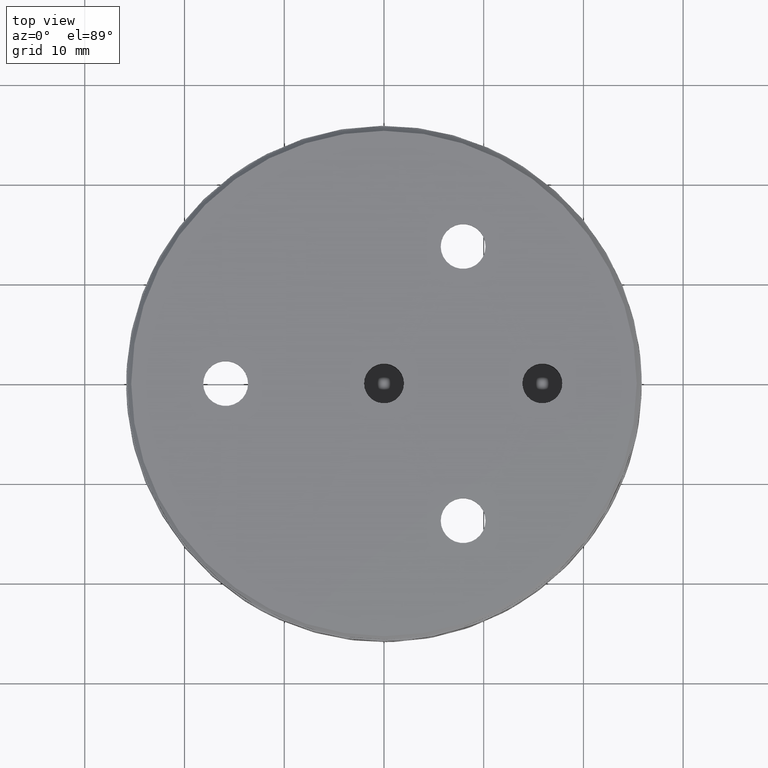
[diagram: clean part render]
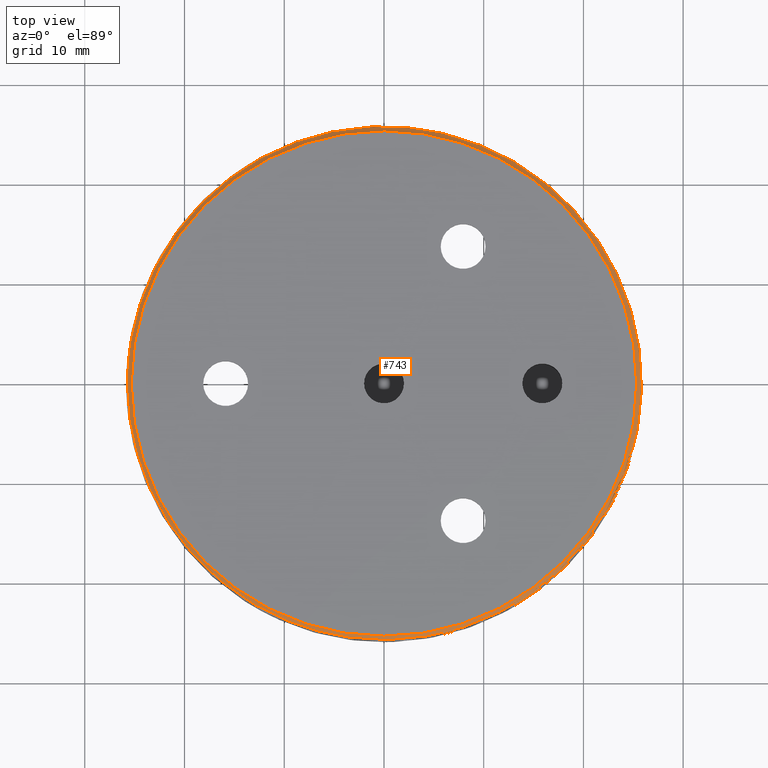
[diagram: same view with one face highlighted and labeled with its STEP entity id]
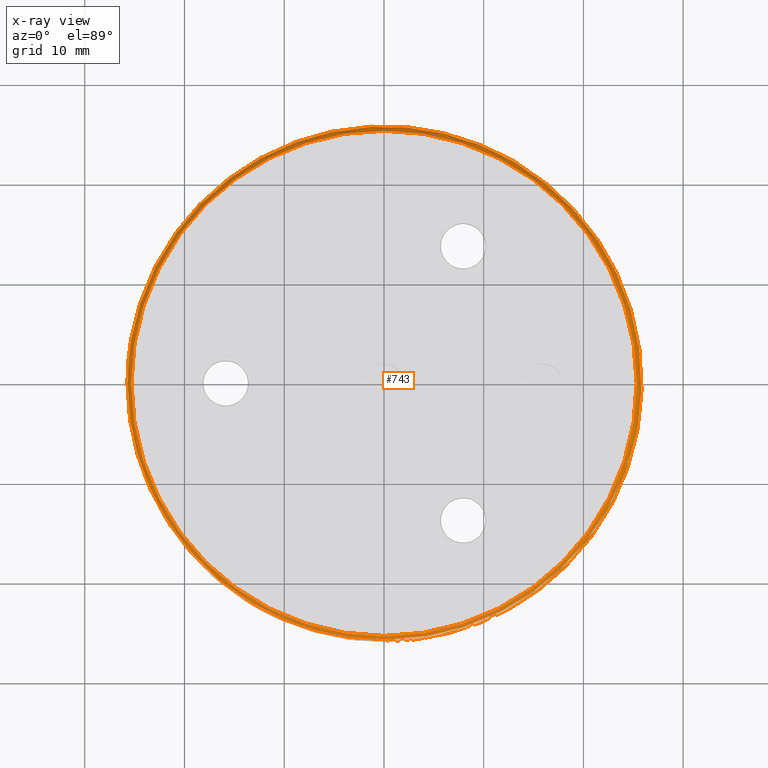
[diagram: x-ray of the same camera — body ghosted, the highlighted face saturated]
A machine part, top view. The second image highlights one B-rep face of the part: STEP entity #743.
The next image is the same camera in x-ray: the body ghosted, the highlighted face saturated — about 0% of this face is hidden behind the body in this view.
In plain terms, the highlighted conical surface has half-angle 45 deg.
Its self-contained STEP definition (entity closure, byte-faithful):
#11 = CARTESIAN_POINT ( 'NONE',  ( 25.06763760694458654, -5.603378234119207768, 2.671851915312509984 ) ) ;
#15 = CARTESIAN_POINT ( 'NONE',  ( -15.06891090939484457, 20.89152282177022357, 2.595670568228000352 ) ) ;
#27 = CARTESIAN_POINT ( 'NONE',  ( -2.743012097144958528, -25.53947917289819358, 2.671851915312503767 ) ) ;
#30 = CARTESIAN_POINT ( 'NONE',  ( -25.29607590722351063, 4.893230204886378054, 2.620394831642471889 ) ) ;
#41 = CIRCLE ( 'NONE', #346, 25.34450000000000713 ) ;
#45 = CARTESIAN_POINT ( 'NONE',  ( 15.96464738451332188, -20.10944352311117100, 2.671851915312510872 ) ) ;
#50 = CARTESIAN_POINT ( 'NONE',  ( -24.51065346522284472, -7.887202968037893669, 2.635895379690938789 ) ) ;
#78 = CARTESIAN_POINT ( 'NONE',  ( -1.906956132196477416, -25.61544687106314200, 2.671851915312507320 ) ) ;
#144 = VERTEX_POINT ( 'NONE', #3167 ) ;
#146 = B_SPLINE_CURVE_WITH_KNOTS ( 'NONE', 3,
 ( #3296, #27, #78, #2955, #915, #674, #1256, #2389, #3279, #3605, #3262, #933, #2149, #2700, #3311, #1494, #45, #2100, #2939, #300, #1206, #3572, #2972, #639, #622, #1477, #315, #1511, #3243, #2650, #11, #1188, #1224 ),
 .UNSPECIFIED., .F., .F.,
 ( 4, 2, 2, 2, 2, 2, 2, 2, 2, 2, 1, 2, 2, 2, 2, 2, 4 ),
 ( 2.920038055720058794E-15, 0.002517579865663192428, 0.005035159731323465317, 0.01007031946264400936, 0.01132910939547414689, 0.01258789932830428615, 0.01510547919396455947, 0.02014063892528510438, 0.02139942885811524018, 0.02265821879094537597, 0.02517579865660564062, 0.02769337852226591221, 0.02895216845509604800, 0.03021095838792618379, 0.03524611811924672350, 0.03776369798490699509, 0.04028127785056725974 ),
 .UNSPECIFIED. ) ;
#211 = CARTESIAN_POINT ( 'NONE',  ( 7.230559129688230335, -24.78618567637055747, 2.536555904489472990 ) ) ;
#237 = CARTESIAN_POINT ( 'NONE',  ( 10.12116736363706160, -23.73768408810974861, 2.550605924352377762 ) ) ;
#238 = CARTESIAN_POINT ( 'NONE',  ( 22.72404587963108824, 12.24492424579806027, 2.541345978747570289 ) ) ;
#256 = CARTESIAN_POINT ( 'NONE',  ( 18.96709693530042884, 17.49665246583202816, 2.549703881303192698 ) ) ;
#287 = CARTESIAN_POINT ( 'NONE',  ( 25.25182295748135886, -4.712063253121372419, 2.668348343695880143 ) ) ;
#299 = CARTESIAN_POINT ( 'NONE',  ( -11.11954704369859037, -23.16187580701096138, 2.661997342081771301 ) ) ;
#300 = CARTESIAN_POINT ( 'NONE',  ( 17.85073859610587732, -18.46962314872630984, 2.671851915312504211 ) ) ;
#304 = CARTESIAN_POINT ( 'NONE',  ( -19.80438159771444617, 16.50523807778404262, 2.603702768206946683 ) ) ;
#315 = CARTESIAN_POINT ( 'NONE',  ( 22.83757595741294111, -11.84588755022760331, 2.671851915312506431 ) ) ;
#319 = CARTESIAN_POINT ( 'NONE',  ( -24.03223477667026486, -9.240953754000084786, 2.637737015249403960 ) ) ;
#329 = CARTESIAN_POINT ( 'NONE',  ( -13.05456510623241151, -22.16760083472346210, 2.659471314972245093 ) ) ;
#336 = CARTESIAN_POINT ( 'NONE',  ( 16.89681810121521011, 19.49889464401413264, 2.553306854265943837 ) ) ;
#346 = AXIS2_PLACEMENT_3D ( 'NONE', #822, #2000, #2881 ) ;
#498 = CARTESIAN_POINT ( 'NONE',  ( 24.89969286313362318, 6.948356378426502999, 2.533970237938123926 ) ) ;
#520 = CARTESIAN_POINT ( 'NONE',  ( 16.03441418215737357, -20.18056435121482650, 2.580710065446153223 ) ) ;
#522 = CARTESIAN_POINT ( 'NONE',  ( 21.85940498889434025, -13.84901456277305343, 2.507401654237822353 ) ) ;
#543 = CARTESIAN_POINT ( 'NONE',  ( 25.68562398866959384, 2.687751970383501110, 2.528666484744909848 ) ) ;
#558 = CARTESIAN_POINT ( 'NONE',  ( 7.967561980521672638, -24.55551523405318193, 2.540136715990692462 ) ) ;
#559 = CARTESIAN_POINT ( 'NONE',  ( 0.000000000000000000, 0.000000000000000000, 2.500000000000006217 ) ) ;
#573 = CARTESIAN_POINT ( 'NONE',  ( 23.16185739777282393, -11.26254549623911849, 2.635577585907644682 ) ) ;
#591 = CARTESIAN_POINT ( 'NONE',  ( -24.12147903751101907, 9.067176955750623435, 2.614913608074051155 ) ) ;
#609 = CARTESIAN_POINT ( 'NONE',  ( -7.367198138489426285, 24.69366224808685928, 2.585473631790490057 ) ) ;
#622 = CARTESIAN_POINT ( 'NONE',  ( 21.53063199280479267, -13.98897681289069972, 2.671851915312513981 ) ) ;
#626 = CARTESIAN_POINT ( 'NONE',  ( -22.97061731059902812, 11.68764696389975910, 2.611204094143900090 ) ) ;
#639 = CARTESIAN_POINT ( 'NONE',  ( 21.06380181053152612, -14.68250113461025919, 2.671851915312513981 ) ) ;
#643 = CARTESIAN_POINT ( 'NONE',  ( -14.47671818085000872, 21.30697249542992466, 2.594816509585381681 ) ) ;
#674 = CARTESIAN_POINT ( 'NONE',  ( 3.099179106567478303, -25.53912283349180612, 2.671851915312499770 ) ) ;
#743 = ADVANCED_FACE ( 'NONE', ( #1161, #1465 ), #780, .T. ) ;
#780 = CONICAL_SURFACE ( 'NONE', #2268, 25.84450000000000003, 0.7853981633974447263 ) ;
#785 = ORIENTED_EDGE ( 'NONE', *, *, #3781, .T. ) ;
#791 = CIRCLE ( 'NONE', #1887, 25.84450000000000358 ) ;
#792 = CARTESIAN_POINT ( 'NONE',  ( 25.55889161641274754, -3.756352496522904261, 2.521159106190663302 ) ) ;
#807 = EDGE_CURVE ( 'NONE', #3692, #144, #860, .T. ) ;
#815 = CARTESIAN_POINT ( 'NONE',  ( 24.73690194776519746, -6.963964229409370432, 2.657570326535990013 ) ) ;
#816 = CARTESIAN_POINT ( 'NONE',  ( 25.36753817521633536, 4.830412687735067934, 2.531283400853393761 ) ) ;
#822 = CARTESIAN_POINT ( 'NONE',  ( 0.000000000000000000, 0.000000000000000000, 3.000000000000002665 ) ) ;
#837 = CARTESIAN_POINT ( 'NONE',  ( 22.36968673886676839, 12.87922203427327084, 2.542290528445884767 ) ) ;
#858 = CARTESIAN_POINT ( 'NONE',  ( 0.000000000000000000, 0.000000000000000000, 2.500000000000005773 ) ) ;
#860 = B_SPLINE_CURVE_WITH_KNOTS ( 'NONE', 3,
 ( #3182, #3474, #3215, #522, #2566, #1724, #1078, #2314, #2262, #3425, #2851, #792, #1104, #1971, #3138, #543, #1389, #816, #498, #1679, #3451, #2874, #238, #837, #2016, #2894, #256, #1193, #1210, #336, #903, #1498, #3230, #3283, #2087, #1482, #2959, #2376, #1514, #3575, #2655, #2670, #3249, #2976, #2393, #2103, #2992, #609, #1773, #3265, #2360, #2687, #643, #15, #2944, #3560, #304, #3541, #920, #626, #591, #1176, #30, #1822, #3819, #1789, #1805, #3523, #50, #319, #1228, #2410, #886, #2069, #937, #2120, #913, #329, #299, #3534, #930, #3224, #3276, #3569, #1766 ),
 .UNSPECIFIED., .F., .F.,
 ( 4, 2, 2, 2, 1, 2, 2, 2, 2, 2, 2, 2, 2, 2, 2, 2, 2, 2, 2, 2, 2, 2, 2, 2, 2, 2, 2, 2, 2, 2, 2, 2, 2, 2, 2, 2, 2, 2, 2, 2, 2, 2, 4 ),
 ( 3.017624285131519119E-16, 0.004354472376691388008, 0.008708944753382474174, 0.01088618094172801899, 0.01306341713007356208, 0.01524065331841911036, 0.01741788950676465692, 0.02177236188345575002, 0.02394959807180129657, 0.02612683426014684659, 0.03048130663683794664, 0.03265854282518348972, 0.03483577901352905015, 0.03919025139022015020, 0.04136748757856570369, 0.04354472376691125024, 0.04789919614360235028, 0.05007643233194789684, 0.05225366852029343645, 0.05660814089698452956, 0.05878537708533007611, 0.06096261327367563654, 0.06531708565036672964, 0.06749432183871227620, 0.06967155802705782275, 0.07402603040374890198, 0.07620326659209444853, 0.07838050278043999508, 0.08273497515713108819, 0.08708944753382219517, 0.09144391991051330215, 0.09579839228720439526, 0.1001528646638955022, 0.1045073370405865953, 0.1088618094172777023, 0.1132162817939687954, 0.1175707541706599024, 0.1219252265473510094, 0.1262796989240421164, 0.1306341713007332095, 0.1328114074890787422, 0.1349886436774243026, 0.1393431160541153957 ),
 .UNSPECIFIED. ) ;
#868 = CARTESIAN_POINT ( 'NONE',  ( 1.235272939682169335, -25.85343063433476729, 2.507462546822633698 ) ) ;
#886 = CARTESIAN_POINT ( 'NONE',  ( -20.53599384383138826, -15.51375947831237845, 2.647109255563058205 ) ) ;
#903 = CARTESIAN_POINT ( 'NONE',  ( 15.21519209083818680, 20.87204233112645824, 2.555948667674084795 ) ) ;
#913 = CARTESIAN_POINT ( 'NONE',  ( -14.27092487575787239, -21.40541457236222911, 2.657866076912856812 ) ) ;
#915 = CARTESIAN_POINT ( 'NONE',  ( 0.6080223885824987962, -25.67891898220855040, 2.671851915312500214 ) ) ;
#920 = CARTESIAN_POINT ( 'NONE',  ( -22.28684974076522352, 12.94987190286013679, 2.609333320892060826 ) ) ;
#930 = CARTESIAN_POINT ( 'NONE',  ( -9.133818673221711038, -24.01140399725689889, 2.664589997604721372 ) ) ;
#933 = CARTESIAN_POINT ( 'NONE',  ( 9.524705084859215631, -23.85507698768741847, 2.671851915312512649 ) ) ;
#937 = CARTESIAN_POINT ( 'NONE',  ( -17.63862873965563338, -18.73645621240089909, 2.652646146265492888 ) ) ;
#1078 = CARTESIAN_POINT ( 'NONE',  ( 23.83082650218958420, -9.993871674927953919, 2.513017583942240396 ) ) ;
#1104 = CARTESIAN_POINT ( 'NONE',  ( 25.81142581738217601, -1.603228823225191224, 2.523746987999885061 ) ) ;
#1128 = CARTESIAN_POINT ( 'NONE',  ( -0.3052499999997544955, -25.84269727964749563, 2.500000000000004441 ) ) ;
#1134 = DIRECTION ( 'NONE',  ( -0.000000000000000000, -0.000000000000000000, 1.000000000000000000 ) ) ;
#1136 = B_SPLINE_CURVE_WITH_KNOTS ( 'NONE', 3,
 ( #3802, #287, #2909, #815, #3787, #3199, #573, #2288, #2313, #2622, #1702, #3449, #2035, #520, #1723, #1160, #2873, #1145, #3769, #237, #3473, #558, #211, #1740, #1413, #1464, #868, #1128 ),
 .UNSPECIFIED., .F., .F.,
 ( 4, 2, 2, 2, 2, 2, 2, 2, 2, 2, 2, 2, 2, 4 ),
 ( 0.000000000000000000, 0.002310816653556329540, 0.004621633307112659080, 0.009243266614225321628, 0.01155408326778165073, 0.01386489992133798158, 0.01848653322845062591, 0.02079734988200694634, 0.02310816653556326677, 0.02541898318911958721, 0.02772979984267591111, 0.03004061649623223501, 0.03235143314978855544, 0.03697306645690119631 ),
 .UNSPECIFIED. ) ;
#1145 = CARTESIAN_POINT ( 'NONE',  ( 12.19734021197756491, -22.72924488051298297, 2.560706789334759481 ) ) ;
#1160 = CARTESIAN_POINT ( 'NONE',  ( 14.17104313373427971, -21.54236605508037883, 2.570473576810960559 ) ) ;
#1161 = FACE_BOUND ( 'NONE', #1917, .T. ) ;
#1175 = CARTESIAN_POINT ( 'NONE',  ( 18.21810356451844015, -18.33136336344028194, 2.500000000000004441 ) ) ;
#1176 = CARTESIAN_POINT ( 'NONE',  ( -24.58884768749964067, 7.707857572761276366, 2.616753741695094337 ) ) ;
#1188 = CARTESIAN_POINT ( 'NONE',  ( 25.23775713223716721, -4.779615750475796787, 2.671851915312514425 ) ) ;
#1193 = CARTESIAN_POINT ( 'NONE',  ( 18.47321782043643879, 18.01616807323058467, 2.550610476576815167 ) ) ;
#1206 = CARTESIAN_POINT ( 'NONE',  ( 19.02300067426999064, -17.29913994901311725, 2.671851915312518422 ) ) ;
#1210 = CARTESIAN_POINT ( 'NONE',  ( 17.43926414314532636, 19.01634344907399310, 2.552410125584808398 ) ) ;
#1224 = CARTESIAN_POINT ( 'NONE',  ( 25.36688974355488213, -3.950413195925047916, 2.671851915312510428 ) ) ;
#1228 = CARTESIAN_POINT ( 'NONE',  ( -22.83611917689800919, -11.88534548713755612, 2.641505915269605875 ) ) ;
#1256 = CARTESIAN_POINT ( 'NONE',  ( 4.734452815106644508, -25.28695430399554311, 2.671851915312507764 ) ) ;
#1381 = VERTEX_POINT ( 'NONE', #3231 ) ;
#1389 = CARTESIAN_POINT ( 'NONE',  ( 25.49425839336997868, 4.114462598351630973, 2.530395652823842489 ) ) ;
#1413 = CARTESIAN_POINT ( 'NONE',  ( 5.005454968139399163, -25.34033255300571241, 2.525751073430869909 ) ) ;
#1464 = CARTESIAN_POINT ( 'NONE',  ( 2.755241766057996866, -25.72736561052414928, 2.514831987423809423 ) ) ;
#1465 = FACE_OUTER_BOUND ( 'NONE', #2869, .T. ) ;
#1477 = CARTESIAN_POINT ( 'NONE',  ( 21.75681646885927378, -13.63453294238647118, 2.671851915312505543 ) ) ;
#1482 = CARTESIAN_POINT ( 'NONE',  ( 9.554855416706168114, 23.95603740174028928, 2.563445464520851758 ) ) ;
#1494 = CARTESIAN_POINT ( 'NONE',  ( 15.63322509733715293, -20.36815474553518257, 2.671851915312504655 ) ) ;
#1498 = CARTESIAN_POINT ( 'NONE',  ( 14.03185559057608067, 21.68220894794449194, 2.557623780114026246 ) ) ;
#1511 = CARTESIAN_POINT ( 'NONE',  ( 23.55161180211410255, -10.35137204564697200, 2.671851915312510428 ) ) ;
#1514 = CARTESIAN_POINT ( 'NONE',  ( 4.019739407155918265, 25.46851425438148553, 2.570646618948429385 ) ) ;
#1548 = CARTESIAN_POINT ( 'NONE',  ( -25.34450000000000713, 0.000000000000000000, 3.000000000000002665 ) ) ;
#1614 = ORIENTED_EDGE ( 'NONE', *, *, #807, .T. ) ;
#1679 = CARTESIAN_POINT ( 'NONE',  ( 24.47372886666895297, 8.317143024854974698, 2.535787354043154807 ) ) ;
#1702 = CARTESIAN_POINT ( 'NONE',  ( 20.30926824448211221, -15.82457044830392157, 2.609410283974482603 ) ) ;
#1723 = CARTESIAN_POINT ( 'NONE',  ( 15.42649539436147776, -20.65347445526666093, 2.577249340672406408 ) ) ;
#1724 = CARTESIAN_POINT ( 'NONE',  ( 23.54103867848563070, -10.66097570871893296, 2.512078979638393328 ) ) ;
#1740 = CARTESIAN_POINT ( 'NONE',  ( 5.750539295700062503, -25.17813216905457452, 2.529368111138111885 ) ) ;
#1766 = CARTESIAN_POINT ( 'NONE',  ( -3.574037353683141127, -25.42264967847935608, 2.671851915312508208 ) ) ;
#1773 = CARTESIAN_POINT ( 'NONE',  ( -9.431282338002713317, 24.01125370746833099, 2.588163025216946522 ) ) ;
#1789 = CARTESIAN_POINT ( 'NONE',  ( -25.74549410163858809, -0.8132226073678476830, 2.627100835975657578 ) ) ;
#1805 = CARTESIAN_POINT ( 'NONE',  ( -25.48703116094769072, -3.704921042224775363, 2.630534542619506588 ) ) ;
#1822 = CARTESIAN_POINT ( 'NONE',  ( -25.52653891275807396, 3.476072672566138611, 2.622146557340267137 ) ) ;
#1874 = EDGE_CURVE ( 'NONE', #144, #1381, #146, .T. ) ;
#1887 = AXIS2_PLACEMENT_3D ( 'NONE', #858, #1134, #3728 ) ;
#1917 = EDGE_LOOP ( 'NONE', ( #3709 ) ) ;
#1927 = VERTEX_POINT ( 'NONE', #2372 ) ;
#1971 = CARTESIAN_POINT ( 'NONE',  ( 25.85824411005153678, -0.1707540606534859451, 2.525339460285855875 ) ) ;
#2000 = DIRECTION ( 'NONE',  ( -0.000000000000000000, -0.000000000000000000, 1.000000000000000000 ) ) ;
#2016 = CARTESIAN_POINT ( 'NONE',  ( 21.23225163117178838, 14.72728367664318405, 2.545111087373055359 ) ) ;
#2035 = CARTESIAN_POINT ( 'NONE',  ( 17.78064382935947307, -18.69278507032727887, 2.591198599105923872 ) ) ;
#2052 = DIRECTION ( 'NONE',  ( -1.000000000000000000, 0.000000000000000000, 0.000000000000000000 ) ) ;
#2069 = CARTESIAN_POINT ( 'NONE',  ( -19.63843760527839777, -16.63421427503056194, 2.648962345553560027 ) ) ;
#2087 = CARTESIAN_POINT ( 'NONE',  ( 10.22507598606761547, 23.67852554263066978, 2.562573786447281510 ) ) ;
#2100 = CARTESIAN_POINT ( 'NONE',  ( 16.61103692529409059, -19.57889519833950942, 2.671851915312510428 ) ) ;
#2103 = CARTESIAN_POINT ( 'NONE',  ( -5.272911531929613815, 25.22659119887453016, 2.582745364306819003 ) ) ;
#2120 = CARTESIAN_POINT ( 'NONE',  ( -16.56236611065778064, -19.69049796038207489, 2.654428501739337865 ) ) ;
#2149 = CARTESIAN_POINT ( 'NONE',  ( 10.29167940405978676, -23.53406985010139607, 2.671851915312511760 ) ) ;
#2262 = CARTESIAN_POINT ( 'NONE',  ( 24.81038747379168896, -7.284766357912737966, 2.516701731303074396 ) ) ;
#2268 = AXIS2_PLACEMENT_3D ( 'NONE', #559, #2345, #2052 ) ;
#2288 = CARTESIAN_POINT ( 'NONE',  ( 22.04006909828011374, -13.27983119705147530, 2.624340725411660191 ) ) ;
#2313 = CARTESIAN_POINT ( 'NONE',  ( 21.63600116668435547, -13.93532687129316727, 2.620594775657195896 ) ) ;
#2314 = CARTESIAN_POINT ( 'NONE',  ( 24.34965780860095919, -8.647790849719465101, 2.514868896262466347 ) ) ;
#2345 = DIRECTION ( 'NONE',  ( 0.000000000000000000, 0.000000000000000000, -1.000000000000000000 ) ) ;
#2360 = CARTESIAN_POINT ( 'NONE',  ( -12.64815836038828145, 22.44346193773934317, 2.592355811050787384 ) ) ;
#2372 = CARTESIAN_POINT ( 'NONE',  ( -0.3052499999997544955, -25.84269727964749563, 2.500000000000004441 ) ) ;
#2376 = CARTESIAN_POINT ( 'NONE',  ( 6.130526657445280136, 25.07783433354985547, 2.567899923921498573 ) ) ;
#2389 = CARTESIAN_POINT ( 'NONE',  ( 6.746787209704791621, -24.77374087893442578, 2.671851915312507764 ) ) ;
#2393 = CARTESIAN_POINT ( 'NONE',  ( -4.569783082793029472, 25.36423202999657178, 2.581829514500619371 ) ) ;
#2410 = CARTESIAN_POINT ( 'NONE',  ( -22.13463763940408313, -13.13975593155578281, 2.643381655927014240 ) ) ;
#2566 = CARTESIAN_POINT ( 'NONE',  ( 22.59365458698423623, -12.61259950354423331, 2.509268697953661587 ) ) ;
#2622 = CARTESIAN_POINT ( 'NONE',  ( 20.77167710500697950, -15.20628144652094527, 2.613138130058144437 ) ) ;
#2650 = CARTESIAN_POINT ( 'NONE',  ( 24.64979793892661775, -7.223002450352062453, 2.671851915312510428 ) ) ;
#2655 = CARTESIAN_POINT ( 'NONE',  ( 1.879758186846716361, 25.71247186724304612, 2.573431800695255234 ) ) ;
#2669 = VERTEX_POINT ( 'NONE', #1548 ) ;
#2670 = CARTESIAN_POINT ( 'NONE',  ( 1.156224926244236118, 25.75436363400630313, 2.574373613630913216 ) ) ;
#2687 = CARTESIAN_POINT ( 'NONE',  ( -13.26694054281294122, 22.08248925075617208, 2.593154471580205733 ) ) ;
#2700 = CARTESIAN_POINT ( 'NONE',  ( 12.53537803108144288, -22.46539902247134535, 2.671851915312512205 ) ) ;
#2787 = EDGE_CURVE ( 'NONE', #1927, #3692, #791, .T. ) ;
#2844 = ORIENTED_EDGE ( 'NONE', *, *, #1874, .T. ) ;
#2851 = CARTESIAN_POINT ( 'NONE',  ( 25.44381284635339213, -4.474720584320224681, 2.520275740296380906 ) ) ;
#2869 = EDGE_LOOP ( 'NONE', ( #2844, #785, #3106, #1614 ) ) ;
#2873 = CARTESIAN_POINT ( 'NONE',  ( 13.52517461493125950, -21.95745954543784961, 2.567171020852120122 ) ) ;
#2874 = CARTESIAN_POINT ( 'NONE',  ( 23.37274947643067691, 10.96044728851504679, 2.539478214078742191 ) ) ;
#2881 = DIRECTION ( 'NONE',  ( -1.000000000000000000, 0.000000000000000000, 0.000000000000000000 ) ) ;
#2894 = CARTESIAN_POINT ( 'NONE',  ( 20.38049221271865008, 15.88070598819003187, 2.546964108294987206 ) ) ;
#2909 = CARTESIAN_POINT ( 'NONE',  ( 25.10257902810525366, -5.468179756202075303, 2.664786138742692323 ) ) ;
#2939 = CARTESIAN_POINT ( 'NONE',  ( 16.92659099079274654, -19.30668599504297234, 2.671851915312504655 ) ) ;
#2944 = CARTESIAN_POINT ( 'NONE',  ( -16.79475119454502519, 19.56798798353334590, 2.598287024010141888 ) ) ;
#2955 = CARTESIAN_POINT ( 'NONE',  ( -0.2318190311245580670, -25.68528489293410999, 2.671851915312507764 ) ) ;
#2959 = CARTESIAN_POINT ( 'NONE',  ( 7.514617452369424022, 24.70128211921576877, 2.566099244270627189 ) ) ;
#2972 = CARTESIAN_POINT ( 'NONE',  ( 20.82275246720719153, -15.02233411131807195, 2.671851915312510428 ) ) ;
#2976 = CARTESIAN_POINT ( 'NONE',  ( -2.447846717119395166, 25.68878380598705036, 2.579065915207353843 ) ) ;
#2992 = CARTESIAN_POINT ( 'NONE',  ( -6.670690424133711716, 24.89161657278878081, 2.584566212966868726 ) ) ;
#3106 = ORIENTED_EDGE ( 'NONE', *, *, #2787, .T. ) ;
#3138 = CARTESIAN_POINT ( 'NONE',  ( 25.75107366715644730, 1.973665002359951126, 2.527820799419600029 ) ) ;
#3167 = CARTESIAN_POINT ( 'NONE',  ( -3.574037353683141127, -25.42264967847935608, 2.671851915312508208 ) ) ;
#3182 = CARTESIAN_POINT ( 'NONE',  ( 18.21810356451844015, -18.33136336344028194, 2.500000000000004441 ) ) ;
#3199 = CARTESIAN_POINT ( 'NONE',  ( 23.78117802564382188, -9.866927351630859988, 2.642976491043311782 ) ) ;
#3215 = CARTESIAN_POINT ( 'NONE',  ( 20.18831466091607751, -16.19422895875864299, 2.503680343552499021 ) ) ;
#3224 = CARTESIAN_POINT ( 'NONE',  ( -8.460202930767747986, -24.25592937296061180, 2.665469618190202006 ) ) ;
#3230 = CARTESIAN_POINT ( 'NONE',  ( 12.16655645607037783, 22.74477648221728643, 2.560049056157399416 ) ) ;
#3231 = CARTESIAN_POINT ( 'NONE',  ( 25.36688974355488213, -3.950413195925047916, 2.671851915312510428 ) ) ;
#3243 = CARTESIAN_POINT ( 'NONE',  ( 24.40291429310005711, -8.016779227968672927, 2.671851915312510872 ) ) ;
#3249 = CARTESIAN_POINT ( 'NONE',  ( -1.016578313107687759, 25.78796145355147829, 2.577202233577071677 ) ) ;
#3262 = CARTESIAN_POINT ( 'NONE',  ( 8.344776865087698781, -24.28218524129495748, 2.671851915312511316 ) ) ;
#3265 = CARTESIAN_POINT ( 'NONE',  ( -10.75072926537164797, 23.44717451231398186, 2.589882568923854933 ) ) ;
#3276 = CARTESIAN_POINT ( 'NONE',  ( -6.412521451689284113, -24.90391544127448853, 2.668143802695277955 ) ) ;
#3279 = CARTESIAN_POINT ( 'NONE',  ( 7.147652230518960259, -24.66111094922749913, 2.671851915312499770 ) ) ;
#3283 = CARTESIAN_POINT ( 'NONE',  ( 11.52964257768516454, 23.07335206549194595, 2.560877252323140674 ) ) ;
#3296 = CARTESIAN_POINT ( 'NONE',  ( -3.574037353683141127, -25.42264967847935608, 2.671851915312508208 ) ) ;
#3311 = CARTESIAN_POINT ( 'NONE',  ( 13.95541184596055118, -21.61307150591428794, 2.671851915312503767 ) ) ;
#3425 = CARTESIAN_POINT ( 'NONE',  ( 25.15614254073534184, -5.888212843163715959, 2.518497983356757342 ) ) ;
#3449 = CARTESIAN_POINT ( 'NONE',  ( 18.84970755910266860, -17.60414306689625974, 2.598372661071542744 ) ) ;
#3451 = CARTESIAN_POINT ( 'NONE',  ( 23.66884708502342960, 10.30751425014307365, 2.538550758057010359 ) ) ;
#3473 = CARTESIAN_POINT ( 'NONE',  ( 9.411928662997590678, -24.03141076545226085, 2.547157177431900621 ) ) ;
#3474 = CARTESIAN_POINT ( 'NONE',  ( 19.24639257890904886, -17.30686382673422585, 2.501818472580652930 ) ) ;
#3523 = CARTESIAN_POINT ( 'NONE',  ( -25.23805089406233293, -5.119186410829701828, 2.632294143399236397 ) ) ;
#3529 = EDGE_CURVE ( 'NONE', #2669, #2669, #41, .T. ) ;
#3534 = CARTESIAN_POINT ( 'NONE',  ( -10.46295893946084554, -23.46464981203921241, 2.662854553751462738 ) ) ;
#3541 = CARTESIAN_POINT ( 'NONE',  ( -20.69365699752386689, 15.37432025219584553, 2.605558423435875515 ) ) ;
#3560 = CARTESIAN_POINT ( 'NONE',  ( -17.85551187079673596, 18.60118878606878567, 2.600068445211383139 ) ) ;
#3569 = CARTESIAN_POINT ( 'NONE',  ( -5.011819089823969620, -25.22241642102083148, 2.669973430751702015 ) ) ;
#3572 = CARTESIAN_POINT ( 'NONE',  ( 20.07710236087437750, -16.02140916402055737, 2.671851915312510428 ) ) ;
#3575 = CARTESIAN_POINT ( 'NONE',  ( 3.310337185076926314, 25.56955887626287804, 2.571569837249573887 ) ) ;
#3605 = CARTESIAN_POINT ( 'NONE',  ( 7.946124058102896015, -24.41553681801382680, 2.671851915312499770 ) ) ;
#3692 = VERTEX_POINT ( 'NONE', #1175 ) ;
#3709 = ORIENTED_EDGE ( 'NONE', *, *, #3529, .F. ) ;
#3728 = DIRECTION ( 'NONE',  ( -1.000000000000000000, 0.000000000000000000, -5.034117924442744612E-17 ) ) ;
#3769 = CARTESIAN_POINT ( 'NONE',  ( 11.51372300533184934, -23.08680237189129159, 2.557379995657665717 ) ) ;
#3781 = EDGE_CURVE ( 'NONE', #1381, #1927, #1136, .T. ) ;
#3787 = CARTESIAN_POINT ( 'NONE',  ( 24.52167242712751971, -7.699064949230364441, 2.653938961483433445 ) ) ;
#3802 = CARTESIAN_POINT ( 'NONE',  ( 25.36688974355488213, -3.950413195925047916, 2.671851915312510428 ) ) ;
#3819 = CARTESIAN_POINT ( 'NONE',  ( -25.75123050957861892, 0.6228746609238383636, 2.625517863448215916 ) ) ;